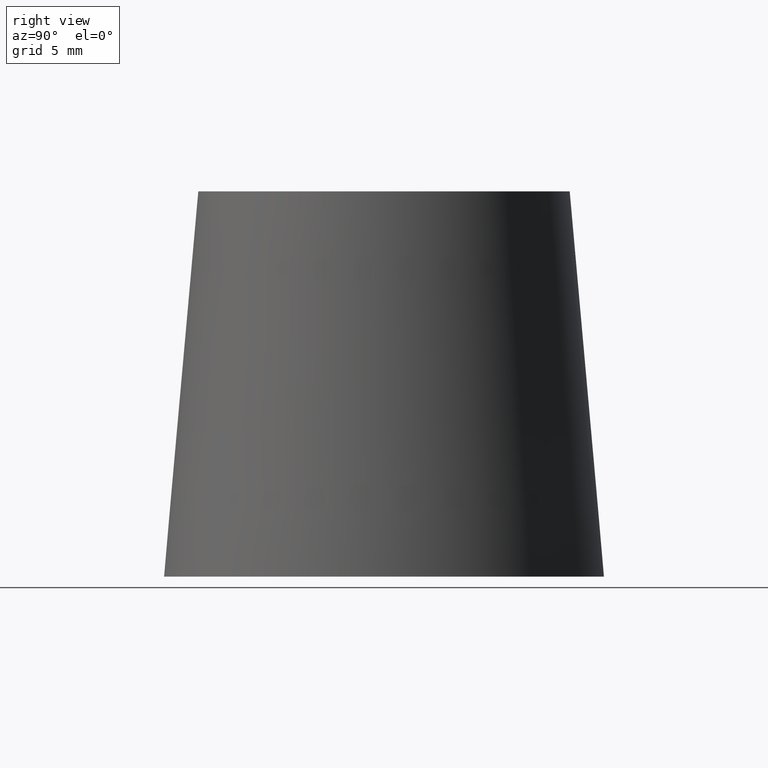
[diagram: clean part render]
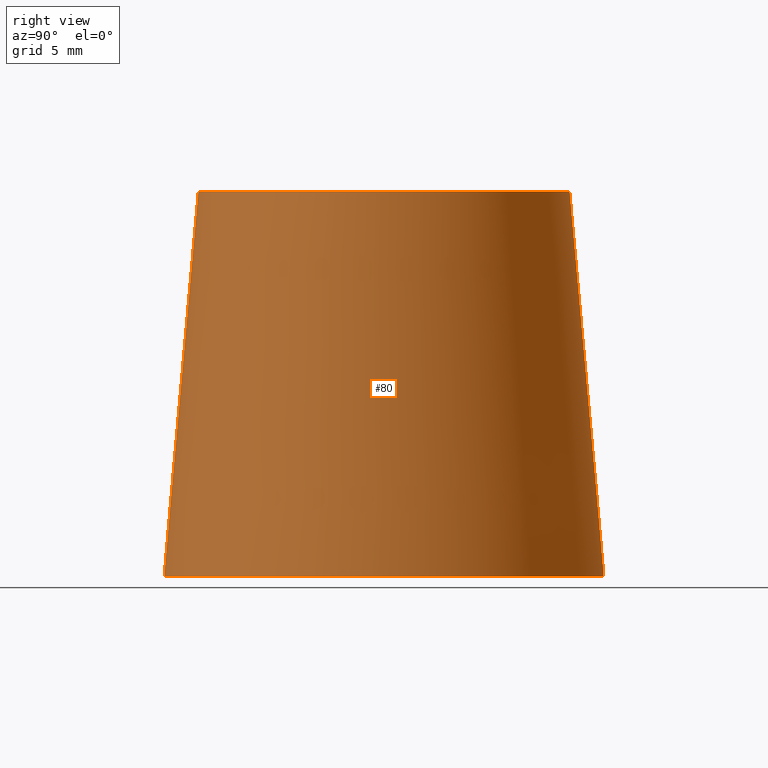
[diagram: same view with one face highlighted and labeled with its STEP entity id]
A machine part, right view. The second image highlights one B-rep face of the part: STEP entity #80.
In plain terms, the highlighted conical surface has half-angle 5.102 deg.
Its self-contained STEP definition (entity closure, byte-faithful):
#15=CONICAL_SURFACE('',#94,16.,5.10216525235819);
#23=FACE_BOUND('',#41,.T.);
#29=FACE_OUTER_BOUND('',#40,.T.);
#40=EDGE_LOOP('',(#70));
#41=EDGE_LOOP('',(#71));
#46=CIRCLE('',#91,13.5);
#47=CIRCLE('',#93,16.);
#52=VERTEX_POINT('',#134);
#53=VERTEX_POINT('',#137);
#58=EDGE_CURVE('',#52,#52,#46,.T.);
#59=EDGE_CURVE('',#53,#53,#47,.T.);
#70=ORIENTED_EDGE('',*,*,#59,.T.);
#71=ORIENTED_EDGE('',*,*,#58,.T.);
#80=ADVANCED_FACE('',(#29,#23),#15,.T.);
#91=AXIS2_PLACEMENT_3D('',#135,#113,#114);
#93=AXIS2_PLACEMENT_3D('',#138,#117,#118);
#94=AXIS2_PLACEMENT_3D('',#139,#119,#120);
#113=DIRECTION('center_axis',(0.,0.,-1.));
#114=DIRECTION('ref_axis',(-1.,0.,0.));
#117=DIRECTION('center_axis',(0.,0.,1.));
#118=DIRECTION('ref_axis',(-1.,0.,0.));
#119=DIRECTION('center_axis',(0.,0.,-1.));
#120=DIRECTION('ref_axis',(-1.,0.,0.));
#134=CARTESIAN_POINT('',(-13.5,0.,28.));
#135=CARTESIAN_POINT('Origin',(0.,0.,28.));
#137=CARTESIAN_POINT('',(-16.,0.,0.));
#138=CARTESIAN_POINT('Origin',(0.,0.,0.));
#139=CARTESIAN_POINT('Origin',(0.,0.,0.));